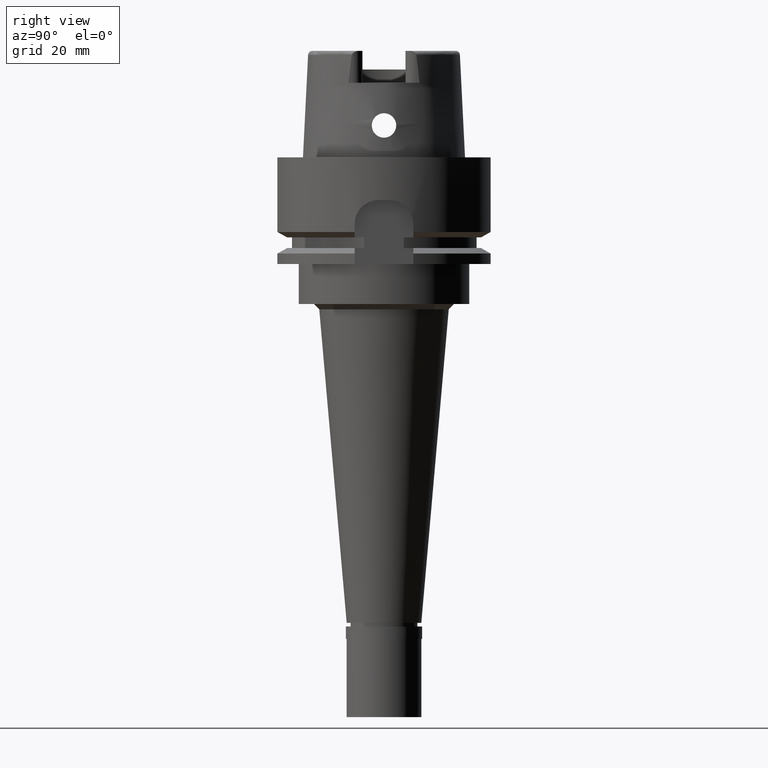
[diagram: clean part render]
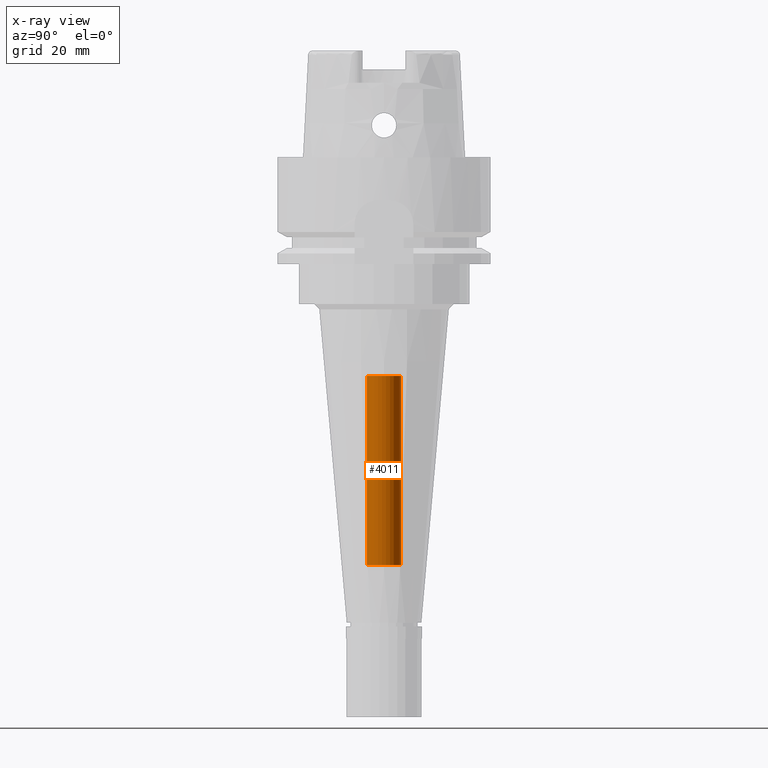
[diagram: x-ray — body ghosted, one internal face saturated and labeled with its STEP entity id]
A machine part, right view, then the same camera in x-ray: the body is ghosted and one INTERNAL B-rep face — a face not visible from any outside direction — is saturated and labeled: STEP entity #4011.
In plain terms, the highlighted cylindrical surface (edge-blend (fillet) strip) has radius 3.2 mm, axis along (0, 0, -1).
Its self-contained STEP definition (entity closure, byte-faithful):
#374 = DIRECTION ( 'NONE',  ( 0.0000000000000000000, 0.0000000000000000000, -1.000000000000000000 ) ) ;
#651 = VERTEX_POINT ( 'NONE', #2009 ) ;
#832 = CARTESIAN_POINT ( 'NONE',  ( 0.0000000000000000000, -3.200000000000000178, -76.50000000000000000 ) ) ;
#1014 = LINE ( 'NONE', #3368, #4035 ) ;
#1074 = ORIENTED_EDGE ( 'NONE', *, *, #3303, .F. ) ;
#1245 = DIRECTION ( 'NONE',  ( 0.0000000000000000000, 0.0000000000000000000, -1.000000000000000000 ) ) ;
#1409 = EDGE_CURVE ( 'NONE', #3732, #651, #3248, .T. ) ;
#1495 = ORIENTED_EDGE ( 'NONE', *, *, #4548, .T. ) ;
#1528 = DIRECTION ( 'NONE',  ( 0.0000000000000000000, -1.000000000000000000, 0.0000000000000000000 ) ) ;
#1558 = CARTESIAN_POINT ( 'NONE',  ( 0.0000000000000000000, -3.200000000000000178, -41.00000000000000000 ) ) ;
#1636 = AXIS2_PLACEMENT_3D ( 'NONE', #5154, #4732, #1528 ) ;
#1690 = ORIENTED_EDGE ( 'NONE', *, *, #2617, .T. ) ;
#1943 = CARTESIAN_POINT ( 'NONE',  ( 0.0000000000000000000, 1.543667290324999758E-14, 26.05000000000000071 ) ) ;
#2009 = CARTESIAN_POINT ( 'NONE',  ( 0.0000000000000000000, 3.200000000000000178, -41.00000000000000000 ) ) ;
#2018 = EDGE_LOOP ( 'NONE', ( #1690, #1495, #2318, #1074 ) ) ;
#2243 = AXIS2_PLACEMENT_3D ( 'NONE', #1943, #374, #2803 ) ;
#2318 = ORIENTED_EDGE ( 'NONE', *, *, #1409, .T. ) ;
#2572 = DIRECTION ( 'NONE',  ( 0.0000000000000000000, 0.0000000000000000000, 1.000000000000000000 ) ) ;
#2575 = FACE_OUTER_BOUND ( 'NONE', #2018, .T. ) ;
#2617 = EDGE_CURVE ( 'NONE', #2636, #2986, #5032, .T. ) ;
#2636 = VERTEX_POINT ( 'NONE', #3277 ) ;
#2803 = DIRECTION ( 'NONE',  ( 0.0000000000000000000, -1.000000000000000000, 0.0000000000000000000 ) ) ;
#2986 = VERTEX_POINT ( 'NONE', #3187 ) ;
#3164 = LINE ( 'NONE', #832, #4027 ) ;
#3187 = CARTESIAN_POINT ( 'NONE',  ( 0.0000000000000000000, -3.200000000000000178, -76.50000000000000000 ) ) ;
#3248 = CIRCLE ( 'NONE', #1636, 3.200000000000000178 ) ;
#3250 = DIRECTION ( 'NONE',  ( 0.0000000000000000000, 0.0000000000000000000, 1.000000000000000000 ) ) ;
#3277 = CARTESIAN_POINT ( 'NONE',  ( 0.0000000000000000000, 3.200000000000000178, -76.50000000000000000 ) ) ;
#3303 = EDGE_CURVE ( 'NONE', #2636, #651, #1014, .T. ) ;
#3368 = CARTESIAN_POINT ( 'NONE',  ( 0.0000000000000000000, 3.200000000000000178, -76.50000000000000000 ) ) ;
#3678 = DIRECTION ( 'NONE',  ( 0.0000000000000000000, 1.000000000000000000, 0.0000000000000000000 ) ) ;
#3732 = VERTEX_POINT ( 'NONE', #1558 ) ;
#4011 = ADVANCED_FACE ( 'NONE', ( #2575 ), #5218, .F. ) ;
#4027 = VECTOR ( 'NONE', #3250, 1000.000000000000000 ) ;
#4035 = VECTOR ( 'NONE', #2572, 1000.000000000000000 ) ;
#4124 = CARTESIAN_POINT ( 'NONE',  ( 0.0000000000000000000, 1.543667290324999758E-14, -76.50000000000000000 ) ) ;
#4548 = EDGE_CURVE ( 'NONE', #2986, #3732, #3164, .T. ) ;
#4615 = AXIS2_PLACEMENT_3D ( 'NONE', #4124, #1245, #3678 ) ;
#4732 = DIRECTION ( 'NONE',  ( 0.0000000000000000000, 0.0000000000000000000, 1.000000000000000000 ) ) ;
#5032 = CIRCLE ( 'NONE', #4615, 3.200000000000000178 ) ;
#5154 = CARTESIAN_POINT ( 'NONE',  ( 0.0000000000000000000, 1.543667290324999758E-14, -41.00000000000000000 ) ) ;
#5218 = CYLINDRICAL_SURFACE ( 'NONE', #2243, 3.200000000000000178 ) ;